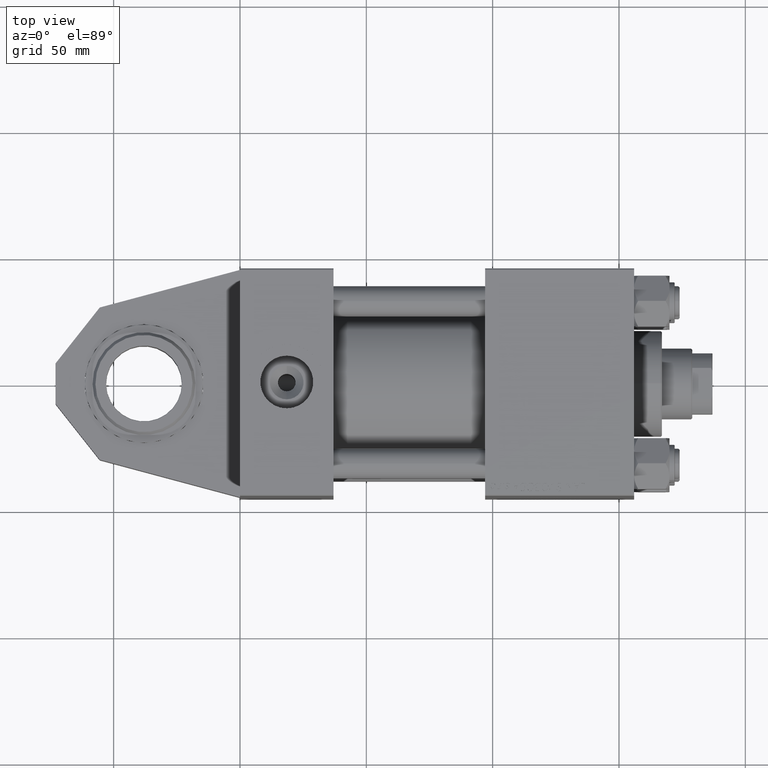
[diagram: clean part render]
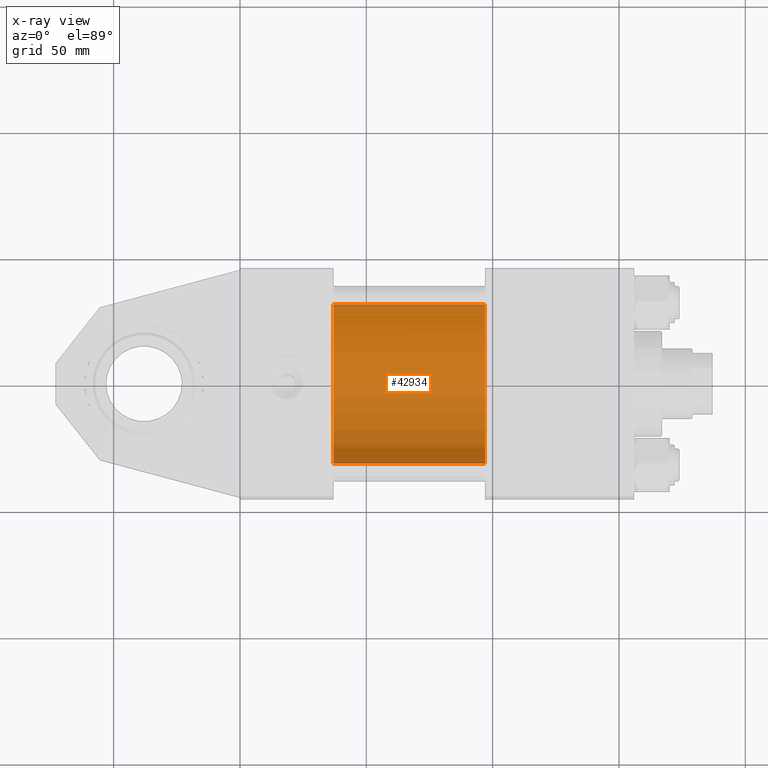
[diagram: x-ray — body ghosted, one internal face saturated and labeled with its STEP entity id]
A machine part, top view, then the same camera in x-ray: the body is ghosted and one INTERNAL B-rep face — a face not visible from any outside direction — is saturated and labeled: STEP entity #42934.
In plain terms, the highlighted cylindrical surface (partial cylindrical patch) has radius 31.5 mm, axis along (-1, 0, -0).
Its self-contained STEP definition (entity closure, byte-faithful):
#1093 = CARTESIAN_POINT ( 'NONE',  ( 97.00000000000000000, -2.602085213965210642E-15, 31.50000000000000000 ) ) ;
#2270 = EDGE_CURVE ( 'NONE', #5875, #6555, #9358, .T. ) ;
#3953 = VECTOR ( 'NONE', #21292, 1000.000000000000000 ) ;
#4040 = AXIS2_PLACEMENT_3D ( 'NONE', #48935, #37240, #5998 ) ;
#4284 = DIRECTION ( 'NONE',  ( 0.000000000000000000, 0.000000000000000000, -1.000000000000000000 ) ) ;
#5737 = AXIS2_PLACEMENT_3D ( 'NONE', #48002, #17011, #24633 ) ;
#5875 = VERTEX_POINT ( 'NONE', #1093 ) ;
#5998 = DIRECTION ( 'NONE',  ( 0.000000000000000000, 0.000000000000000000, 1.000000000000000000 ) ) ;
#6106 = LINE ( 'NONE', #49042, #24707 ) ;
#6555 = VERTEX_POINT ( 'NONE', #13614 ) ;
#7829 = VERTEX_POINT ( 'NONE', #48546 ) ;
#8523 = ORIENTED_EDGE ( 'NONE', *, *, #37330, .T. ) ;
#9358 = LINE ( 'NONE', #43902, #3953 ) ;
#9873 = ORIENTED_EDGE ( 'NONE', *, *, #2270, .F. ) ;
#10358 = AXIS2_PLACEMENT_3D ( 'NONE', #11915, #23595, #4284 ) ;
#11915 = CARTESIAN_POINT ( 'NONE',  ( 97.00000000000000000, -2.602085213965210642E-15, 0.000000000000000000 ) ) ;
#12230 = ORIENTED_EDGE ( 'NONE', *, *, #20755, .T. ) ;
#13614 = CARTESIAN_POINT ( 'NONE',  ( 37.00000000000000000, -2.602085213965210642E-15, 31.50000000000000000 ) ) ;
#14701 = CARTESIAN_POINT ( 'NONE',  ( 97.00000000000000000, 1.255552203348951850E-15, -31.50000000000000000 ) ) ;
#14788 = VERTEX_POINT ( 'NONE', #14701 ) ;
#17011 = DIRECTION ( 'NONE',  ( 1.000000000000000000, 0.000000000000000000, 0.000000000000000000 ) ) ;
#18053 = DIRECTION ( 'NONE',  ( -1.000000000000000000, -0.000000000000000000, -0.000000000000000000 ) ) ;
#20755 = EDGE_CURVE ( 'NONE', #14788, #7829, #6106, .T. ) ;
#21292 = DIRECTION ( 'NONE',  ( -1.000000000000000000, -0.000000000000000000, -0.000000000000000000 ) ) ;
#23595 = DIRECTION ( 'NONE',  ( 1.000000000000000000, 0.000000000000000000, 0.000000000000000000 ) ) ;
#24130 = FACE_OUTER_BOUND ( 'NONE', #40234, .T. ) ;
#24633 = DIRECTION ( 'NONE',  ( 0.000000000000000000, 0.000000000000000000, -1.000000000000000000 ) ) ;
#24707 = VECTOR ( 'NONE', #18053, 1000.000000000000000 ) ;
#34812 = CYLINDRICAL_SURFACE ( 'NONE', #4040, 31.50000000000000000 ) ;
#37240 = DIRECTION ( 'NONE',  ( -1.000000000000000000, -0.000000000000000000, -0.000000000000000000 ) ) ;
#37330 = EDGE_CURVE ( 'NONE', #5875, #14788, #49310, .T. ) ;
#38993 = CIRCLE ( 'NONE', #5737, 31.50000000000000000 ) ;
#40234 = EDGE_LOOP ( 'NONE', ( #8523, #12230, #41765, #9873 ) ) ;
#41765 = ORIENTED_EDGE ( 'NONE', *, *, #48687, .F. ) ;
#42934 = ADVANCED_FACE ( 'NONE', ( #24130 ), #34812, .F. ) ;
#43902 = CARTESIAN_POINT ( 'NONE',  ( 97.00000000000000000, -2.602085213965210642E-15, 31.50000000000000000 ) ) ;
#48002 = CARTESIAN_POINT ( 'NONE',  ( 37.00000000000000000, -2.602085213965210642E-15, 0.000000000000000000 ) ) ;
#48546 = CARTESIAN_POINT ( 'NONE',  ( 37.00000000000000000, 1.255552203348951850E-15, -31.50000000000000000 ) ) ;
#48687 = EDGE_CURVE ( 'NONE', #6555, #7829, #38993, .T. ) ;
#48935 = CARTESIAN_POINT ( 'NONE',  ( 97.00000000000000000, -2.602085213965210642E-15, 0.000000000000000000 ) ) ;
#49042 = CARTESIAN_POINT ( 'NONE',  ( 97.00000000000000000, 1.255552203348951850E-15, -31.50000000000000000 ) ) ;
#49310 = CIRCLE ( 'NONE', #10358, 31.50000000000000000 ) ;